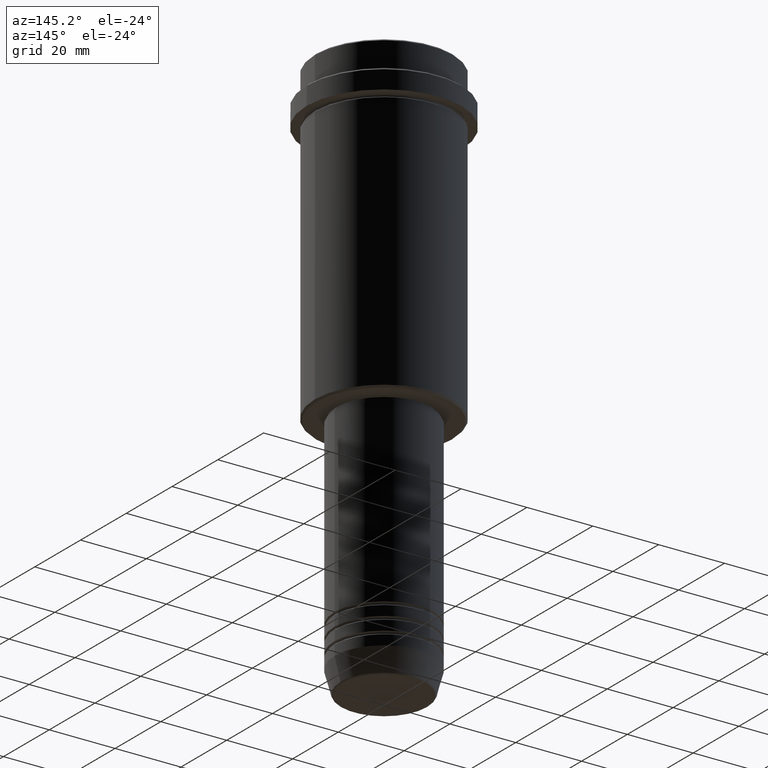
[diagram: clean part render]
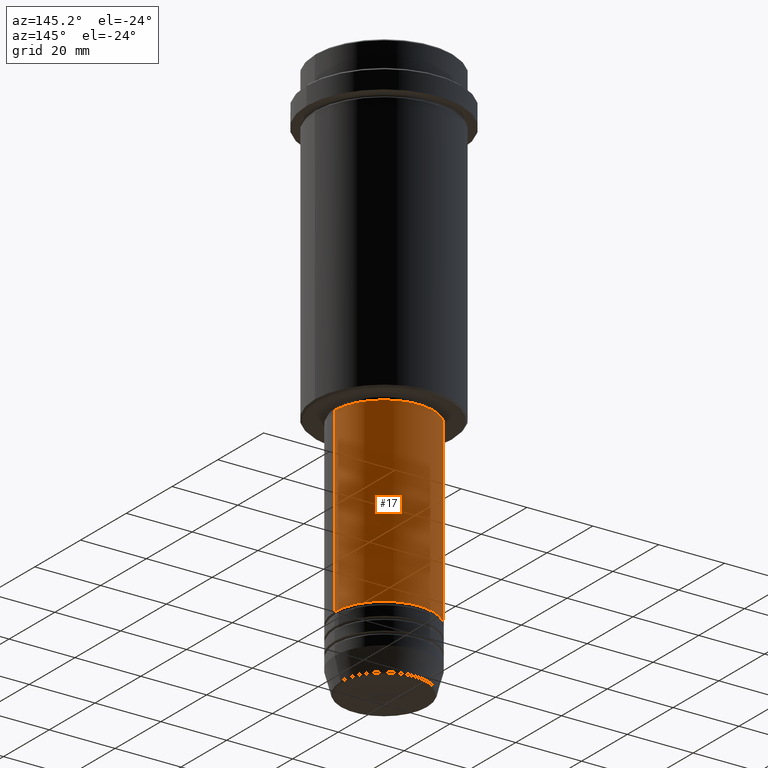
[diagram: same view with one face highlighted and labeled with its STEP entity id]
A machine part, auxiliary view. The second image highlights one B-rep face of the part: STEP entity #17.
In plain terms, the highlighted cylindrical surface (partial cylindrical patch) has radius 15 mm, axis along (-0, -0, 1).
Its self-contained STEP definition (entity closure, byte-faithful):
#3 = CARTESIAN_POINT ( 'NONE',  ( 15.00000000000000000, 0.000000000000000000, -96.00000000000000000 ) ) ;
#13 = AXIS2_PLACEMENT_3D ( 'NONE', #1013, #1100, #577 ) ;
#17 = ADVANCED_FACE ( 'NONE', ( #215 ), #556, .T. ) ;
#20 = DIRECTION ( 'NONE',  ( -0.000000000000000000, -0.000000000000000000, 1.000000000000000000 ) ) ;
#44 = DIRECTION ( 'NONE',  ( -0.000000000000000000, -0.000000000000000000, 1.000000000000000000 ) ) ;
#115 = LINE ( 'NONE', #363, #615 ) ;
#126 = DIRECTION ( 'NONE',  ( 1.000000000000000000, 0.000000000000000000, 0.000000000000000000 ) ) ;
#131 = ORIENTED_EDGE ( 'NONE', *, *, #776, .F. ) ;
#151 = CIRCLE ( 'NONE', #478, 15.00000000000000000 ) ;
#215 = FACE_OUTER_BOUND ( 'NONE', #671, .T. ) ;
#234 = DIRECTION ( 'NONE',  ( -0.000000000000000000, -0.000000000000000000, 1.000000000000000000 ) ) ;
#308 = ORIENTED_EDGE ( 'NONE', *, *, #1356, .T. ) ;
#348 = CARTESIAN_POINT ( 'NONE',  ( 0.000000000000000000, 0.000000000000000000, 0.000000000000000000 ) ) ;
#363 = CARTESIAN_POINT ( 'NONE',  ( 15.00000000000000000, 0.000000000000000000, 0.000000000000000000 ) ) ;
#441 = CARTESIAN_POINT ( 'NONE',  ( -15.00000000000000000, 1.836970198721029589E-15, 0.000000000000000000 ) ) ;
#455 = VECTOR ( 'NONE', #234, 1000.000000000000000 ) ;
#461 = ORIENTED_EDGE ( 'NONE', *, *, #898, .F. ) ;
#465 = CARTESIAN_POINT ( 'NONE',  ( 0.000000000000000000, 0.000000000000000000, -96.00000000000000000 ) ) ;
#478 = AXIS2_PLACEMENT_3D ( 'NONE', #465, #20, #126 ) ;
#556 = CYLINDRICAL_SURFACE ( 'NONE', #957, 15.00000000000000000 ) ;
#577 = DIRECTION ( 'NONE',  ( 1.000000000000000000, 0.000000000000000000, 0.000000000000000000 ) ) ;
#593 = CIRCLE ( 'NONE', #13, 15.00000000000000000 ) ;
#615 = VECTOR ( 'NONE', #44, 1000.000000000000000 ) ;
#671 = EDGE_LOOP ( 'NONE', ( #308, #1176, #461, #131 ) ) ;
#776 = EDGE_CURVE ( 'NONE', #859, #988, #115, .T. ) ;
#787 = VERTEX_POINT ( 'NONE', #1317 ) ;
#791 = CARTESIAN_POINT ( 'NONE',  ( -15.00000000000000000, 1.836970198721029589E-15, -150.9999999999999147 ) ) ;
#859 = VERTEX_POINT ( 'NONE', #1215 ) ;
#898 = EDGE_CURVE ( 'NONE', #988, #787, #151, .T. ) ;
#957 = AXIS2_PLACEMENT_3D ( 'NONE', #348, #1411, #992 ) ;
#974 = VERTEX_POINT ( 'NONE', #791 ) ;
#988 = VERTEX_POINT ( 'NONE', #3 ) ;
#992 = DIRECTION ( 'NONE',  ( 1.000000000000000000, 0.000000000000000000, 0.000000000000000000 ) ) ;
#1013 = CARTESIAN_POINT ( 'NONE',  ( 0.000000000000000000, 0.000000000000000000, -150.9999999999999147 ) ) ;
#1100 = DIRECTION ( 'NONE',  ( -0.000000000000000000, -0.000000000000000000, 1.000000000000000000 ) ) ;
#1176 = ORIENTED_EDGE ( 'NONE', *, *, #1399, .T. ) ;
#1215 = CARTESIAN_POINT ( 'NONE',  ( 15.00000000000000000, 0.000000000000000000, -150.9999999999999147 ) ) ;
#1317 = CARTESIAN_POINT ( 'NONE',  ( -15.00000000000000000, 1.836970198721029589E-15, -96.00000000000000000 ) ) ;
#1356 = EDGE_CURVE ( 'NONE', #859, #974, #593, .T. ) ;
#1399 = EDGE_CURVE ( 'NONE', #974, #787, #1413, .T. ) ;
#1411 = DIRECTION ( 'NONE',  ( -0.000000000000000000, -0.000000000000000000, 1.000000000000000000 ) ) ;
#1413 = LINE ( 'NONE', #441, #455 ) ;